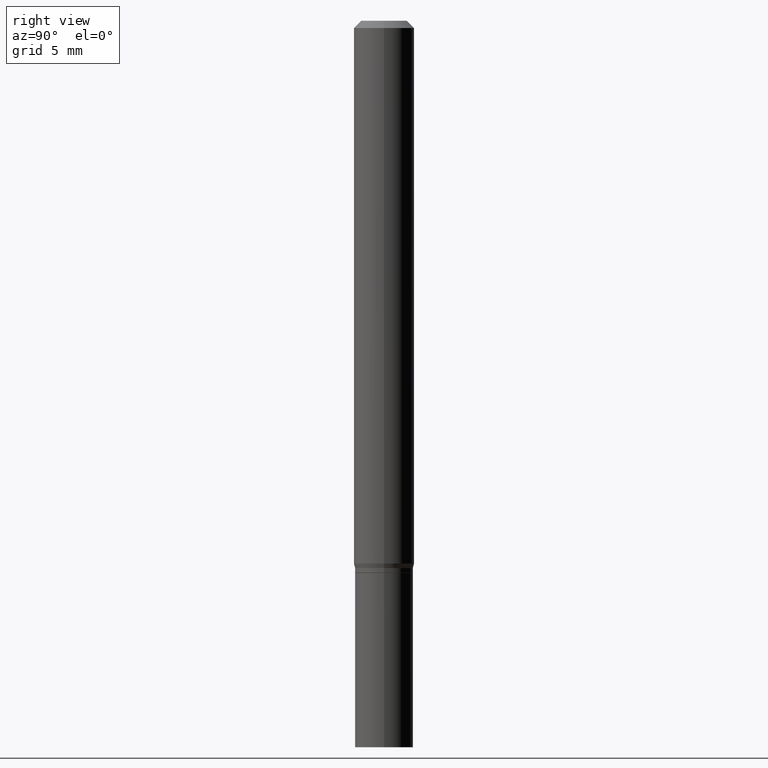
[diagram: clean part render]
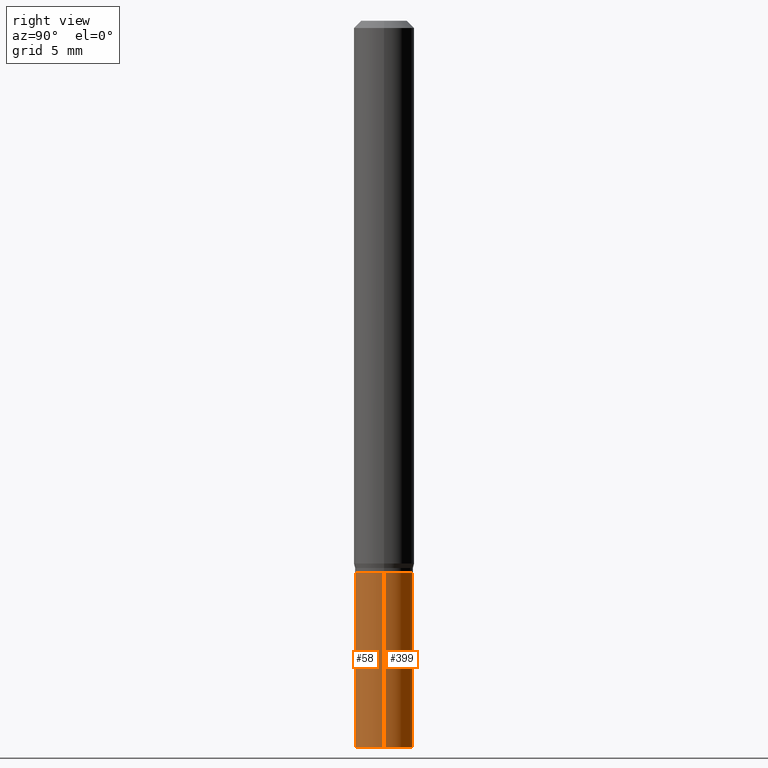
[diagram: same view with one multi-face feature highlighted, each face labeled with its STEP entity id]
A machine part, right view. The highlighted faces form ONE feature: a constant-radius fillet chain: 2 tangent blend faces with common blend radius 1.524 mm. The faces share edges in the B-rep.
Their STEP definitions:
[1] entity #58 (Cylinder):
#20 = CARTESIAN_POINT ( 'NONE',  ( -0.05999999999999999778, -4.182429725816891947E-15, -1.500000000000000222 ) ) ;
#21 = ORIENTED_EDGE ( 'NONE', *, *, #335, .F. ) ;
#30 = DIRECTION ( 'NONE',  ( -2.445468806185136597E-29, 3.491481338843145583E-15, 1.000000000000000000 ) ) ;
#57 = CYLINDRICAL_SURFACE ( 'NONE', #404, 0.05999999999999999778 ) ;
#58 = ADVANCED_FACE ( 'NONE', ( #117 ), #57, .T. ) ;
#68 = VECTOR ( 'NONE', #308, 39.37007874015748143 ) ;
#93 = CARTESIAN_POINT ( 'NONE',  ( 3.668203209277704895E-29, -5.237222008264718177E-15, -1.500000000000000222 ) ) ;
#102 = CARTESIAN_POINT ( 'NONE',  ( 2.787834439051055989E-29, -3.980288726281186698E-15, -1.140000000000000124 ) ) ;
#112 = EDGE_CURVE ( 'NONE', #266, #291, #243, .T. ) ;
#114 = DIRECTION ( 'NONE',  ( -2.445468806185136597E-29, 3.491481338843145583E-15, 1.000000000000000000 ) ) ;
#117 = FACE_OUTER_BOUND ( 'NONE', #224, .T. ) ;
#129 = ORIENTED_EDGE ( 'NONE', *, *, #430, .T. ) ;
#130 = VECTOR ( 'NONE', #241, 39.37007874015748143 ) ;
#167 = CIRCLE ( 'NONE', #389, 0.05999999999999999778 ) ;
#177 = ORIENTED_EDGE ( 'NONE', *, *, #112, .T. ) ;
#188 = DIRECTION ( 'NONE',  ( 1.000000000000000000, -6.982962677686268288E-15, 0.000000000000000000 ) ) ;
#198 = DIRECTION ( 'NONE',  ( -2.445468806185136597E-29, 3.491481338843145583E-15, 1.000000000000000000 ) ) ;
#205 = CARTESIAN_POINT ( 'NONE',  ( 0.05999999999999999778, -5.656199768925894810E-15, -1.500000000000000222 ) ) ;
#224 = EDGE_LOOP ( 'NONE', ( #21, #129, #177, #458 ) ) ;
#241 = DIRECTION ( 'NONE',  ( -2.445468806185136877E-29, 3.491481338843145188E-15, 1.000000000000000000 ) ) ;
#243 = LINE ( 'NONE', #385, #130 ) ;
#244 = CARTESIAN_POINT ( 'NONE',  ( -0.05999999999999999778, -4.182429725816891947E-15, -1.140000000000000124 ) ) ;
#253 = CIRCLE ( 'NONE', #411, 0.05999999999999999778 ) ;
#261 = DIRECTION ( 'NONE',  ( 1.000000000000000000, -6.982962677686267499E-15, 4.876176775795936353E-29 ) ) ;
#266 = VERTEX_POINT ( 'NONE', #205 ) ;
#268 = EDGE_CURVE ( 'NONE', #366, #291, #253, .T. ) ;
#279 = LINE ( 'NONE', #419, #68 ) ;
#291 = VERTEX_POINT ( 'NONE', #425 ) ;
#308 = DIRECTION ( 'NONE',  ( -2.445468806185136877E-29, 3.491481338843145188E-15, 1.000000000000000000 ) ) ;
#335 = EDGE_CURVE ( 'NONE', #443, #366, #279, .T. ) ;
#356 = DIRECTION ( 'NONE',  ( 1.000000000000000000, -6.982962677686268288E-15, 0.000000000000000000 ) ) ;
#366 = VERTEX_POINT ( 'NONE', #244 ) ;
#371 = CARTESIAN_POINT ( 'NONE',  ( 0.000000000000000000, 0.000000000000000000, 0.000000000000000000 ) ) ;
#385 = CARTESIAN_POINT ( 'NONE',  ( 0.05999999999999999778, -4.189777606611760421E-16, 2.925706065477561756E-30 ) ) ;
#389 = AXIS2_PLACEMENT_3D ( 'NONE', #93, #114, #188 ) ;
#404 = AXIS2_PLACEMENT_3D ( 'NONE', #371, #198, #261 ) ;
#411 = AXIS2_PLACEMENT_3D ( 'NONE', #102, #30, #356 ) ;
#419 = CARTESIAN_POINT ( 'NONE',  ( -0.05999999999999999778, 4.263256414560600957E-16, -2.951361054152943413E-30 ) ) ;
#425 = CARTESIAN_POINT ( 'NONE',  ( 0.05999999999999999778, -4.399266486942362543E-15, -1.140000000000000124 ) ) ;
#430 = EDGE_CURVE ( 'NONE', #443, #266, #167, .T. ) ;
#443 = VERTEX_POINT ( 'NONE', #20 ) ;
#458 = ORIENTED_EDGE ( 'NONE', *, *, #268, .F. ) ;
[2] entity #399 (Cylinder):
#19 = ORIENTED_EDGE ( 'NONE', *, *, #333, .T. ) ;
#20 = CARTESIAN_POINT ( 'NONE',  ( -0.05999999999999999778, -4.182429725816891947E-15, -1.500000000000000222 ) ) ;
#33 = DIRECTION ( 'NONE',  ( -2.445468806185136597E-29, 3.491481338843145583E-15, 1.000000000000000000 ) ) ;
#47 = CIRCLE ( 'NONE', #104, 0.05999999999999999778 ) ;
#68 = VECTOR ( 'NONE', #308, 39.37007874015748143 ) ;
#91 = DIRECTION ( 'NONE',  ( 1.000000000000000000, -6.982962677686267499E-15, 4.876176775795936353E-29 ) ) ;
#104 = AXIS2_PLACEMENT_3D ( 'NONE', #213, #33, #396 ) ;
#112 = EDGE_CURVE ( 'NONE', #266, #291, #243, .T. ) ;
#130 = VECTOR ( 'NONE', #241, 39.37007874015748143 ) ;
#143 = AXIS2_PLACEMENT_3D ( 'NONE', #298, #377, #91 ) ;
#205 = CARTESIAN_POINT ( 'NONE',  ( 0.05999999999999999778, -5.656199768925894810E-15, -1.500000000000000222 ) ) ;
#213 = CARTESIAN_POINT ( 'NONE',  ( 2.787834439051055989E-29, -3.980288726281186698E-15, -1.140000000000000124 ) ) ;
#215 = CIRCLE ( 'NONE', #221, 0.05999999999999999778 ) ;
#221 = AXIS2_PLACEMENT_3D ( 'NONE', #424, #277, #353 ) ;
#227 = EDGE_CURVE ( 'NONE', #291, #366, #47, .T. ) ;
#240 = FACE_OUTER_BOUND ( 'NONE', #442, .T. ) ;
#241 = DIRECTION ( 'NONE',  ( -2.445468806185136877E-29, 3.491481338843145188E-15, 1.000000000000000000 ) ) ;
#243 = LINE ( 'NONE', #385, #130 ) ;
#244 = CARTESIAN_POINT ( 'NONE',  ( -0.05999999999999999778, -4.182429725816891947E-15, -1.140000000000000124 ) ) ;
#266 = VERTEX_POINT ( 'NONE', #205 ) ;
#277 = DIRECTION ( 'NONE',  ( -2.445468806185136597E-29, 3.491481338843145583E-15, 1.000000000000000000 ) ) ;
#279 = LINE ( 'NONE', #419, #68 ) ;
#291 = VERTEX_POINT ( 'NONE', #425 ) ;
#298 = CARTESIAN_POINT ( 'NONE',  ( 0.000000000000000000, 0.000000000000000000, 0.000000000000000000 ) ) ;
#302 = ORIENTED_EDGE ( 'NONE', *, *, #335, .T. ) ;
#308 = DIRECTION ( 'NONE',  ( -2.445468806185136877E-29, 3.491481338843145188E-15, 1.000000000000000000 ) ) ;
#333 = EDGE_CURVE ( 'NONE', #266, #443, #215, .T. ) ;
#335 = EDGE_CURVE ( 'NONE', #443, #366, #279, .T. ) ;
#336 = CYLINDRICAL_SURFACE ( 'NONE', #143, 0.05999999999999999778 ) ;
#353 = DIRECTION ( 'NONE',  ( 1.000000000000000000, -6.982962677686268288E-15, 0.000000000000000000 ) ) ;
#366 = VERTEX_POINT ( 'NONE', #244 ) ;
#367 = ORIENTED_EDGE ( 'NONE', *, *, #112, .F. ) ;
#377 = DIRECTION ( 'NONE',  ( -2.445468806185136597E-29, 3.491481338843145583E-15, 1.000000000000000000 ) ) ;
#385 = CARTESIAN_POINT ( 'NONE',  ( 0.05999999999999999778, -4.189777606611760421E-16, 2.925706065477561756E-30 ) ) ;
#396 = DIRECTION ( 'NONE',  ( 1.000000000000000000, -6.982962677686268288E-15, 0.000000000000000000 ) ) ;
#399 = ADVANCED_FACE ( 'NONE', ( #240 ), #336, .T. ) ;
#418 = ORIENTED_EDGE ( 'NONE', *, *, #227, .F. ) ;
#419 = CARTESIAN_POINT ( 'NONE',  ( -0.05999999999999999778, 4.263256414560600957E-16, -2.951361054152943413E-30 ) ) ;
#424 = CARTESIAN_POINT ( 'NONE',  ( 3.668203209277704895E-29, -5.237222008264718177E-15, -1.500000000000000222 ) ) ;
#425 = CARTESIAN_POINT ( 'NONE',  ( 0.05999999999999999778, -4.399266486942362543E-15, -1.140000000000000124 ) ) ;
#442 = EDGE_LOOP ( 'NONE', ( #19, #302, #418, #367 ) ) ;
#443 = VERTEX_POINT ( 'NONE', #20 ) ;